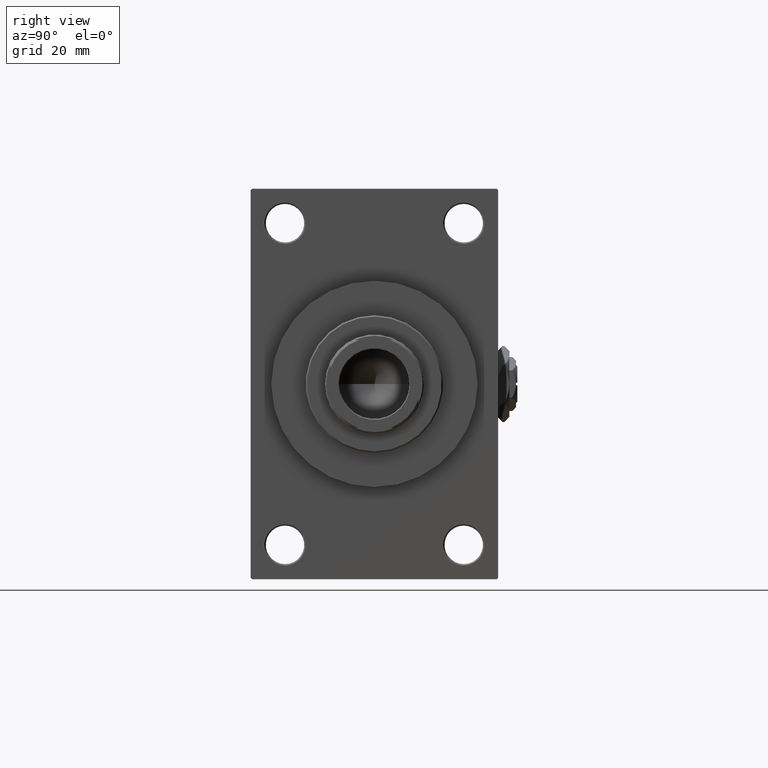
[diagram: clean part render]
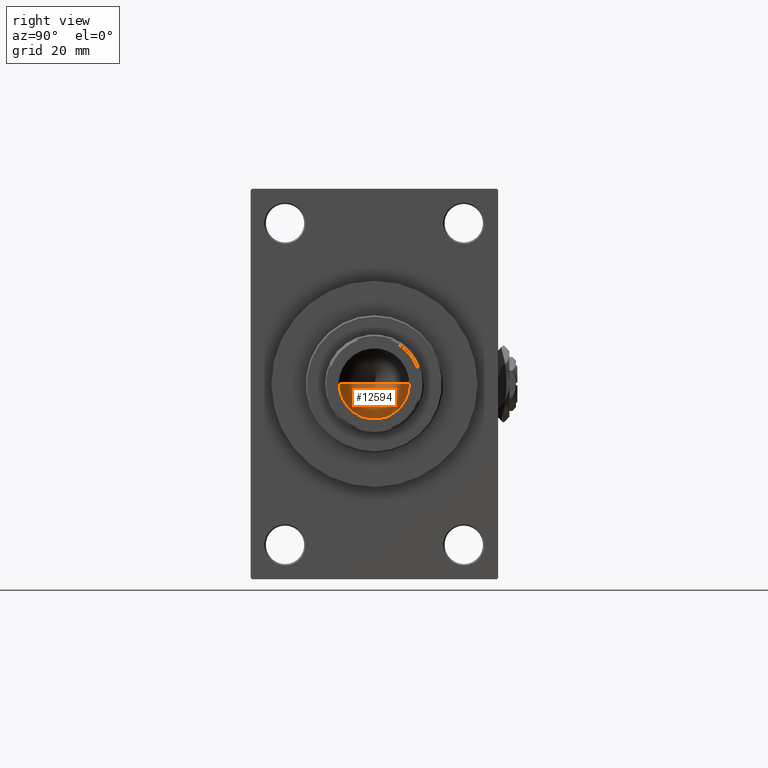
[diagram: same view with one face highlighted and labeled with its STEP entity id]
A machine part, right view. The second image highlights one B-rep face of the part: STEP entity #12594.
In plain terms, the highlighted conical surface has half-angle 59 deg.
Its self-contained STEP definition (entity closure, byte-faithful):
#79 = CIRCLE ( 'NONE', #18232, 12.74999999999999112 ) ;
#102 = DIRECTION ( 'NONE',  ( -0.000000000000000000, -0.000000000000000000, 1.000000000000000000 ) ) ;
#819 = ORIENTED_EDGE ( 'NONE', *, *, #13532, .T. ) ;
#3337 = DIRECTION ( 'NONE',  ( 1.000000000000000000, 0.000000000000000000, 0.000000000000000000 ) ) ;
#3534 = EDGE_CURVE ( 'NONE', #26867, #7259, #29632, .T. ) ;
#5226 = VECTOR ( 'NONE', #46698, 1000.000000000000000 ) ;
#5810 = DIRECTION ( 'NONE',  ( -0.000000000000000000, -0.000000000000000000, 1.000000000000000000 ) ) ;
#7259 = VERTEX_POINT ( 'NONE', #13068 ) ;
#8036 = VECTOR ( 'NONE', #48705, 1000.000000000000000 ) ;
#9995 = DIRECTION ( 'NONE',  ( 1.000000000000000000, 0.000000000000000000, 0.000000000000000000 ) ) ;
#12594 = ADVANCED_FACE ( 'NONE', ( #35986 ), #28462, .F. ) ;
#13068 = CARTESIAN_POINT ( 'NONE',  ( -12.74999999999999112, 1.561424668912874125E-15, 105.0000000000000284 ) ) ;
#13462 = CARTESIAN_POINT ( 'NONE',  ( 0.000000000000000000, 0.000000000000000000, 105.0000000000000284 ) ) ;
#13532 = EDGE_CURVE ( 'NONE', #30127, #7259, #79, .T. ) ;
#15254 = EDGE_LOOP ( 'NONE', ( #38255, #26610, #819 ) ) ;
#16494 = LINE ( 'NONE', #31572, #5226 ) ;
#18232 = AXIS2_PLACEMENT_3D ( 'NONE', #22134, #102, #3337 ) ;
#19788 = AXIS2_PLACEMENT_3D ( 'NONE', #13462, #5810, #9995 ) ;
#22134 = CARTESIAN_POINT ( 'NONE',  ( 0.000000000000000000, 0.000000000000000000, 105.0000000000000284 ) ) ;
#26610 = ORIENTED_EDGE ( 'NONE', *, *, #28930, .T. ) ;
#26867 = VERTEX_POINT ( 'NONE', #47669 ) ;
#28462 = CONICAL_SURFACE ( 'NONE', #19788, 12.74999999999999112, 1.029744258676653423 ) ;
#28930 = EDGE_CURVE ( 'NONE', #26867, #30127, #16494, .T. ) ;
#29632 = LINE ( 'NONE', #44746, #8036 ) ;
#30127 = VERTEX_POINT ( 'NONE', #47986 ) ;
#31572 = CARTESIAN_POINT ( 'NONE',  ( 12.74999999999999112, 0.000000000000000000, 105.0000000000000284 ) ) ;
#35986 = FACE_OUTER_BOUND ( 'NONE', #15254, .T. ) ;
#38255 = ORIENTED_EDGE ( 'NONE', *, *, #3534, .F. ) ;
#44746 = CARTESIAN_POINT ( 'NONE',  ( -12.74999999999999112, 1.561424668912874125E-15, 105.0000000000000284 ) ) ;
#46698 = DIRECTION ( 'NONE',  ( 0.8571673007021117785, 0.000000000000000000, 0.5150380749100550437 ) ) ;
#47669 = CARTESIAN_POINT ( 'NONE',  ( -1.323906893019387300E-14, 0.000000000000000000, 97.33902710739862130 ) ) ;
#47986 = CARTESIAN_POINT ( 'NONE',  ( 12.74999999999999112, 0.000000000000000000, 105.0000000000000284 ) ) ;
#48705 = DIRECTION ( 'NONE',  ( -0.8571673007021117785, 1.049727191138617956E-16, 0.5150380749100550437 ) ) ;